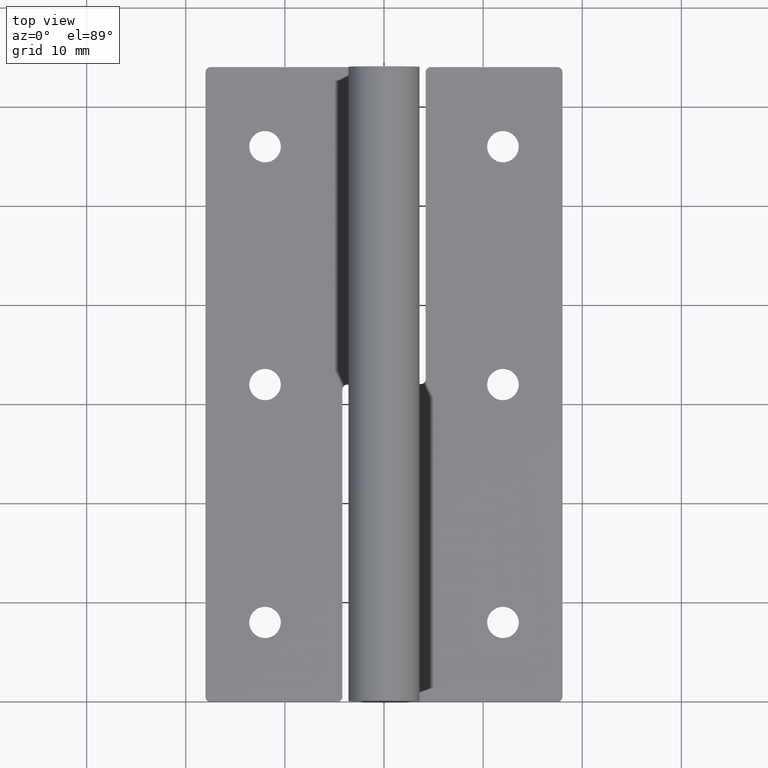
[diagram: clean part render]
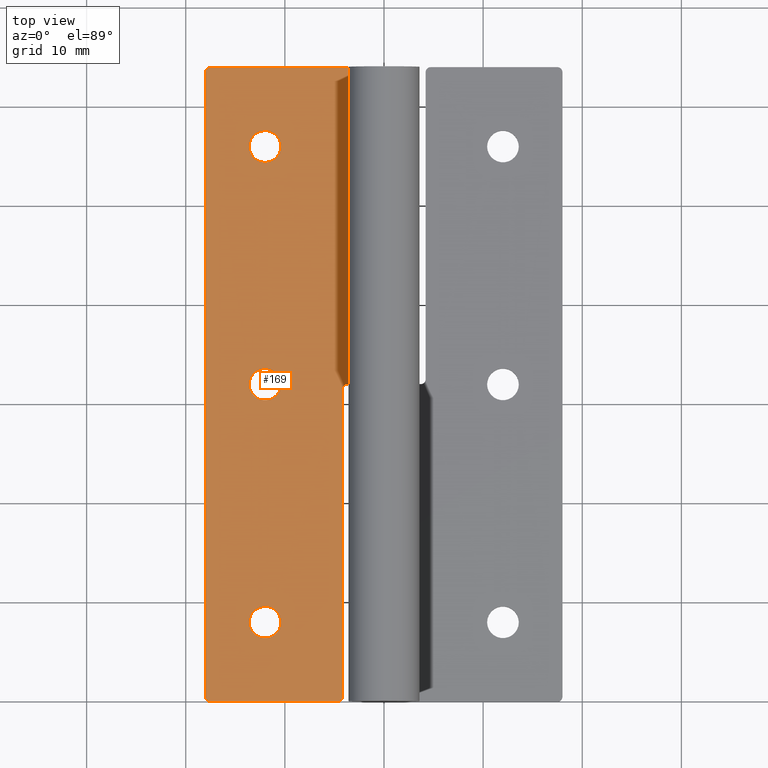
[diagram: same view with one face highlighted and labeled with its STEP entity id]
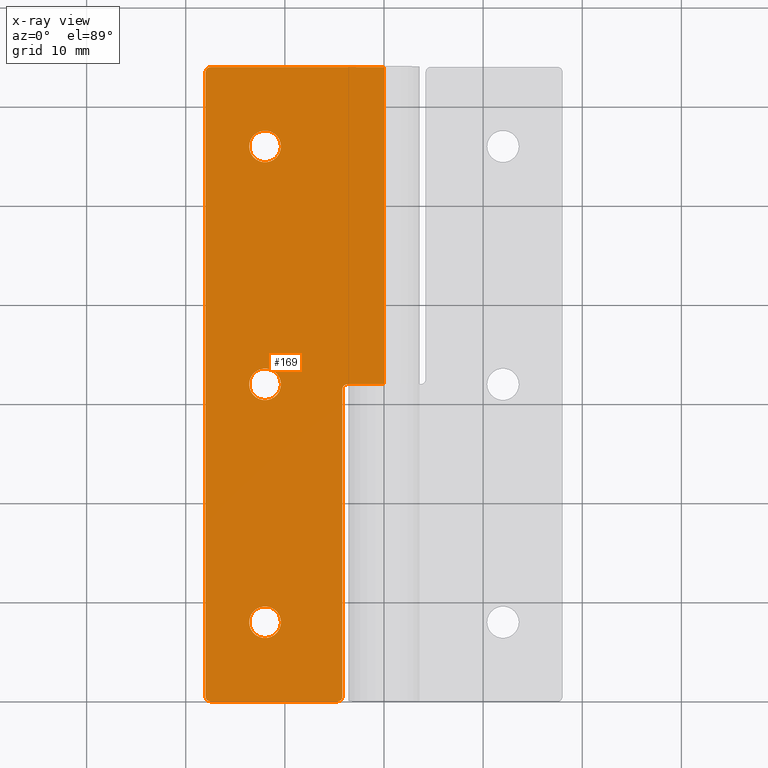
[diagram: x-ray of the same camera — body ghosted, the highlighted face saturated]
A machine part, top view. The second image highlights one B-rep face of the part: STEP entity #169.
The next image is the same camera in x-ray: the body ghosted, the highlighted face saturated — about 0% of this face is hidden behind the body in this view.
In plain terms, the highlighted planar face has unit normal (0, 0, 1).
Its self-contained STEP definition (entity closure, byte-faithful):
#169=ADVANCED_FACE('',(#402,#403,#404,#405),#401,.T.);
#401=PLANE('',#776);
#402=FACE_OUTER_BOUND('',#777,.T.);
#403=FACE_BOUND('',#778,.T.);
#404=FACE_BOUND('',#779,.T.);
#405=FACE_BOUND('',#780,.T.);
#773=CARTESIAN_POINT('',(-1.98000000000E+01,-6.40000000000E+00,-2.00000000000E+00));
#774=DIRECTION('',(0.00000000000E+00,-0.00000000000E+00,1.00000000000E+00));
#775=DIRECTION('',(1.00000000000E+00,0.00000000000E+00,-0.00000000000E+00));
#776=AXIS2_PLACEMENT_3D('',#773,#774,#775);
#777=EDGE_LOOP('',(#1029,#1030,#1031,#1032,#1033,#1034,#1035,#1036,#1037,#1038));
#778=EDGE_LOOP('',(#1039,#1040));
#779=EDGE_LOOP('',(#1041,#1042));
#780=EDGE_LOOP('',(#1043,#1044));
#1029=ORIENTED_EDGE('',*,*,#1211,.T.);
#1030=ORIENTED_EDGE('',*,*,#1212,.T.);
#1031=ORIENTED_EDGE('',*,*,#1213,.F.);
#1032=ORIENTED_EDGE('',*,*,#1214,.T.);
#1033=ORIENTED_EDGE('',*,*,#1215,.F.);
#1034=ORIENTED_EDGE('',*,*,#1216,.F.);
#1035=ORIENTED_EDGE('',*,*,#1217,.F.);
#1036=ORIENTED_EDGE('',*,*,#1218,.F.);
#1037=ORIENTED_EDGE('',*,*,#1219,.T.);
#1038=ORIENTED_EDGE('',*,*,#1220,.T.);
#1039=ORIENTED_EDGE('',*,*,#1221,.F.);
#1040=ORIENTED_EDGE('',*,*,#1222,.F.);
#1041=ORIENTED_EDGE('',*,*,#1223,.F.);
#1042=ORIENTED_EDGE('',*,*,#1224,.F.);
#1043=ORIENTED_EDGE('',*,*,#1225,.F.);
#1044=ORIENTED_EDGE('',*,*,#1226,.F.);
#1211=EDGE_CURVE('',#1635,#1636,#1637,.T.);
#1212=EDGE_CURVE('',#1636,#1643,#1644,.T.);
#1213=EDGE_CURVE('',#1650,#1643,#1651,.T.);
#1214=EDGE_CURVE('',#1650,#1657,#1658,.T.);
#1215=EDGE_CURVE('',#1664,#1657,#1665,.T.);
#1216=EDGE_CURVE('',#1671,#1664,#1672,.T.);
#1217=EDGE_CURVE('',#1678,#1671,#1679,.T.);
#1218=EDGE_CURVE('',#1685,#1678,#1686,.T.);
#1219=EDGE_CURVE('',#1685,#1692,#1693,.T.);
#1220=EDGE_CURVE('',#1692,#1635,#1699,.T.);
#1221=EDGE_CURVE('',#1705,#1706,#1707,.T.);
#1222=EDGE_CURVE('',#1706,#1705,#1713,.T.);
#1223=EDGE_CURVE('',#1719,#1720,#1721,.T.);
#1224=EDGE_CURVE('',#1720,#1719,#1727,.T.);
#1225=EDGE_CURVE('',#1733,#1734,#1735,.T.);
#1226=EDGE_CURVE('',#1734,#1733,#1741,.T.);
#1635=VERTEX_POINT('',#2277);
#1636=VERTEX_POINT('',#2278);
#1637=LINE('',#2279,#2280);
#1643=VERTEX_POINT('',#2282);
#1644=CIRCLE('',#2286,5.00000000000E-01);
#1650=VERTEX_POINT('',#2287);
#1651=LINE('',#2288,#2289);
#1657=VERTEX_POINT('',#2291);
#1658=CIRCLE('',#2295,5.00000000000E-01);
#1664=VERTEX_POINT('',#2296);
#1665=LINE('',#2297,#2298);
#1671=VERTEX_POINT('',#2300);
#1672=CIRCLE('',#2304,5.00000000000E-01);
#1678=VERTEX_POINT('',#2305);
#1679=LINE('',#2306,#2307);
#1685=VERTEX_POINT('',#2309);
#1686=LINE('',#2310,#2311);
#1692=VERTEX_POINT('',#2313);
#1693=LINE('',#2314,#2315);
#1699=CIRCLE('',#2320,5.00000000000E-01);
#1705=VERTEX_POINT('',#2321);
#1706=VERTEX_POINT('',#2322);
#1707=CIRCLE('',#2326,1.60000000000E+00);
#1713=CIRCLE('',#2330,1.60000000000E+00);
#1719=VERTEX_POINT('',#2331);
#1720=VERTEX_POINT('',#2332);
#1721=CIRCLE('',#2336,1.60000000000E+00);
#1727=CIRCLE('',#2340,1.60000000000E+00);
#1733=VERTEX_POINT('',#2341);
#1734=VERTEX_POINT('',#2342);
#1735=CIRCLE('',#2346,1.60000000000E+00);
#1741=CIRCLE('',#2350,1.60000000000E+00);
#2277=CARTESIAN_POINT('',(-1.80000000000E+01,6.35000000000E+01,-2.00000000000E+00));
#2278=CARTESIAN_POINT('',(-1.80000000000E+01,5.00000000000E-01,-2.00000000000E+00));
#2279=CARTESIAN_POINT('',(-1.80000000000E+01,6.35000000000E+01,-2.00000000000E+00));
#2280=VECTOR('',#2281,6.30000000000E+01);
#2281=DIRECTION('',(0.00000000000E+00,-1.00000000000E+00,0.00000000000E+00));
#2282=CARTESIAN_POINT('',(-1.75000000000E+01,0.00000000000E+00,-2.00000000000E+00));
#2283=CARTESIAN_POINT('',(-1.75000000000E+01,5.00000000000E-01,-2.00000000000E+00));
#2284=DIRECTION('',(0.00000000000E+00,0.00000000000E+00,1.00000000000E+00));
#2285=DIRECTION('',(-1.00000000000E+00,-0.00000000000E+00,0.00000000000E+00));
#2286=AXIS2_PLACEMENT_3D('',#2283,#2284,#2285);
#2287=CARTESIAN_POINT('',(-4.69999999996E+00,0.00000000000E+00,-2.00000000000E+00));
#2288=CARTESIAN_POINT('',(-4.69999999996E+00,0.00000000000E+00,-2.00000000000E+00));
#2289=VECTOR('',#2290,1.28000000000E+01);
#2290=DIRECTION('',(-1.00000000000E+00,0.00000000000E+00,0.00000000000E+00));
#2291=CARTESIAN_POINT('',(-4.19999999996E+00,5.00000000000E-01,-2.00000000000E+00));
#2292=CARTESIAN_POINT('',(-4.69999999996E+00,5.00000000000E-01,-2.00000000000E+00));
#2293=DIRECTION('',(0.00000000000E+00,0.00000000000E+00,1.00000000000E+00));
#2294=DIRECTION('',(-1.00000000000E+00,-0.00000000000E+00,0.00000000000E+00));
#2295=AXIS2_PLACEMENT_3D('',#2292,#2293,#2294);
#2296=CARTESIAN_POINT('',(-4.19999999996E+00,3.15000000000E+01,-2.00000000000E+00));
#2297=CARTESIAN_POINT('',(-4.19999999996E+00,3.15000000000E+01,-2.00000000000E+00));
#2298=VECTOR('',#2299,3.10000000000E+01);
#2299=DIRECTION('',(0.00000000000E+00,-1.00000000000E+00,0.00000000000E+00));
#2300=CARTESIAN_POINT('',(-3.69999999996E+00,3.20000000000E+01,-2.00000000000E+00));
#2301=CARTESIAN_POINT('',(-3.69999999996E+00,3.15000000000E+01,-2.00000000000E+00));
#2302=DIRECTION('',(0.00000000000E+00,0.00000000000E+00,1.00000000000E+00));
#2303=DIRECTION('',(-1.00000000000E+00,-0.00000000000E+00,0.00000000000E+00));
#2304=AXIS2_PLACEMENT_3D('',#2301,#2302,#2303);
#2305=CARTESIAN_POINT('',(1.22462435327E-16,3.20000000000E+01,-2.00000000000E+00));
#2306=CARTESIAN_POINT('',(1.22462435327E-16,3.20000000000E+01,-2.00000000000E+00));
#2307=VECTOR('',#2308,3.69999999996E+00);
#2308=DIRECTION('',(-1.00000000000E+00,0.00000000000E+00,0.00000000000E+00));
#2309=CARTESIAN_POINT('',(1.22464679915E-16,6.40000000000E+01,-2.00000000000E+00));
#2310=CARTESIAN_POINT('',(1.22464679915E-16,6.40000000000E+01,-2.00000000000E+00));
#2311=VECTOR('',#2312,3.20000000000E+01);
#2312=DIRECTION('',(0.00000000000E+00,-1.00000000000E+00,0.00000000000E+00));
#2313=CARTESIAN_POINT('',(-1.75000000000E+01,6.40000000000E+01,-2.00000000000E+00));
#2314=CARTESIAN_POINT('',(1.22464679915E-16,6.40000000000E+01,-2.00000000000E+00));
#2315=VECTOR('',#2316,1.75000000000E+01);
#2316=DIRECTION('',(-1.00000000000E+00,0.00000000000E+00,0.00000000000E+00));
#2317=CARTESIAN_POINT('',(-1.75000000000E+01,6.35000000000E+01,-2.00000000000E+00));
#2318=DIRECTION('',(0.00000000000E+00,0.00000000000E+00,1.00000000000E+00));
#2319=DIRECTION('',(-1.00000000000E+00,-0.00000000000E+00,0.00000000000E+00));
#2320=AXIS2_PLACEMENT_3D('',#2317,#2318,#2319);
#2321=CARTESIAN_POINT('',(-1.36000000000E+01,5.60000000000E+01,-2.00000000000E+00));
#2322=CARTESIAN_POINT('',(-1.04000000000E+01,5.60000000000E+01,-2.00000000000E+00));
#2323=CARTESIAN_POINT('',(-1.20000000000E+01,5.60000000000E+01,-2.00000000000E+00));
#2324=DIRECTION('',(0.00000000000E+00,-0.00000000000E+00,1.00000000000E+00));
#2325=DIRECTION('',(1.00000000000E+00,-1.22460635382E-16,-0.00000000000E+00));
#2326=AXIS2_PLACEMENT_3D('',#2323,#2324,#2325);
#2327=CARTESIAN_POINT('',(-1.20000000000E+01,5.60000000000E+01,-2.00000000000E+00));
#2328=DIRECTION('',(0.00000000000E+00,-0.00000000000E+00,1.00000000000E+00));
#2329=DIRECTION('',(1.00000000000E+00,-1.22460635382E-16,-0.00000000000E+00));
#2330=AXIS2_PLACEMENT_3D('',#2327,#2328,#2329);
#2331=CARTESIAN_POINT('',(-1.36000000000E+01,3.20000000000E+01,-2.00000000000E+00));
#2332=CARTESIAN_POINT('',(-1.04000000000E+01,3.20000000000E+01,-2.00000000000E+00));
#2333=CARTESIAN_POINT('',(-1.20000000000E+01,3.20000000000E+01,-2.00000000000E+00));
#2334=DIRECTION('',(0.00000000000E+00,-0.00000000000E+00,1.00000000000E+00));
#2335=DIRECTION('',(1.00000000000E+00,-1.22460635382E-16,-0.00000000000E+00));
#2336=AXIS2_PLACEMENT_3D('',#2333,#2334,#2335);
#2337=CARTESIAN_POINT('',(-1.20000000000E+01,3.20000000000E+01,-2.00000000000E+00));
#2338=DIRECTION('',(0.00000000000E+00,-0.00000000000E+00,1.00000000000E+00));
#2339=DIRECTION('',(1.00000000000E+00,-1.22460635382E-16,-0.00000000000E+00));
#2340=AXIS2_PLACEMENT_3D('',#2337,#2338,#2339);
#2341=CARTESIAN_POINT('',(-1.36000000000E+01,8.00000000000E+00,-2.00000000000E+00));
#2342=CARTESIAN_POINT('',(-1.04000000000E+01,8.00000000000E+00,-2.00000000000E+00));
#2343=CARTESIAN_POINT('',(-1.20000000000E+01,8.00000000000E+00,-2.00000000000E+00));
#2344=DIRECTION('',(0.00000000000E+00,-0.00000000000E+00,1.00000000000E+00));
#2345=DIRECTION('',(1.00000000000E+00,-1.22460635382E-16,-0.00000000000E+00));
#2346=AXIS2_PLACEMENT_3D('',#2343,#2344,#2345);
#2347=CARTESIAN_POINT('',(-1.20000000000E+01,8.00000000000E+00,-2.00000000000E+00));
#2348=DIRECTION('',(0.00000000000E+00,-0.00000000000E+00,1.00000000000E+00));
#2349=DIRECTION('',(1.00000000000E+00,-1.22460635382E-16,-0.00000000000E+00));
#2350=AXIS2_PLACEMENT_3D('',#2347,#2348,#2349);